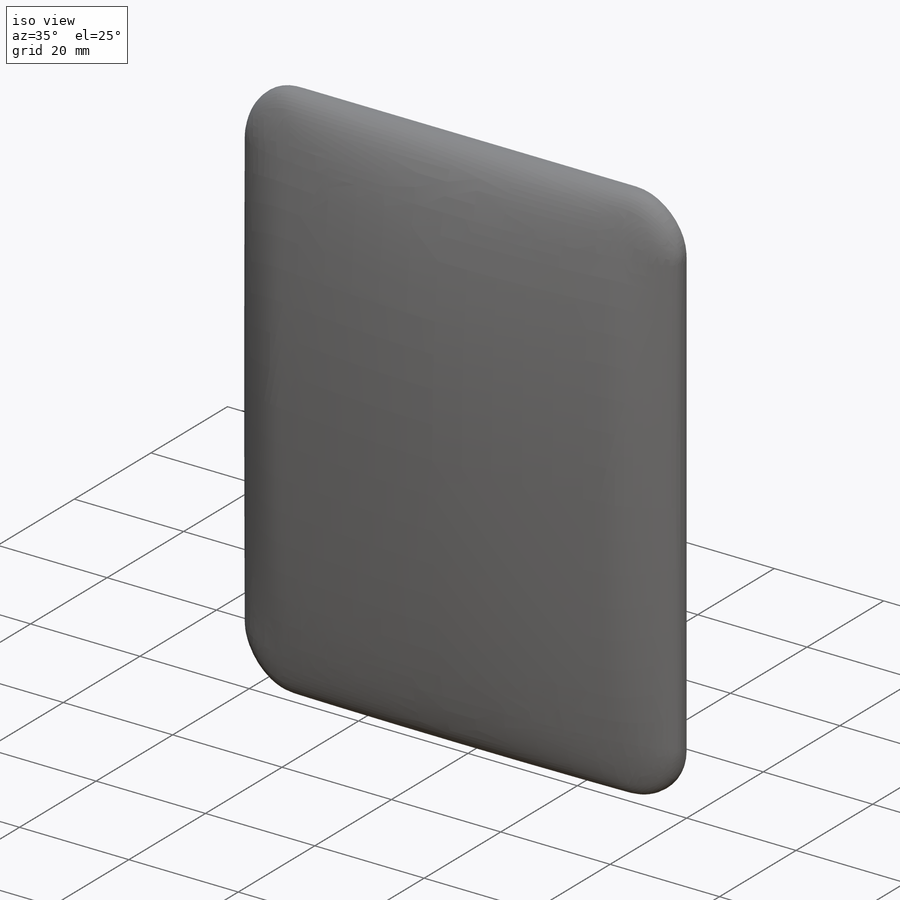
[diagram: iso view]
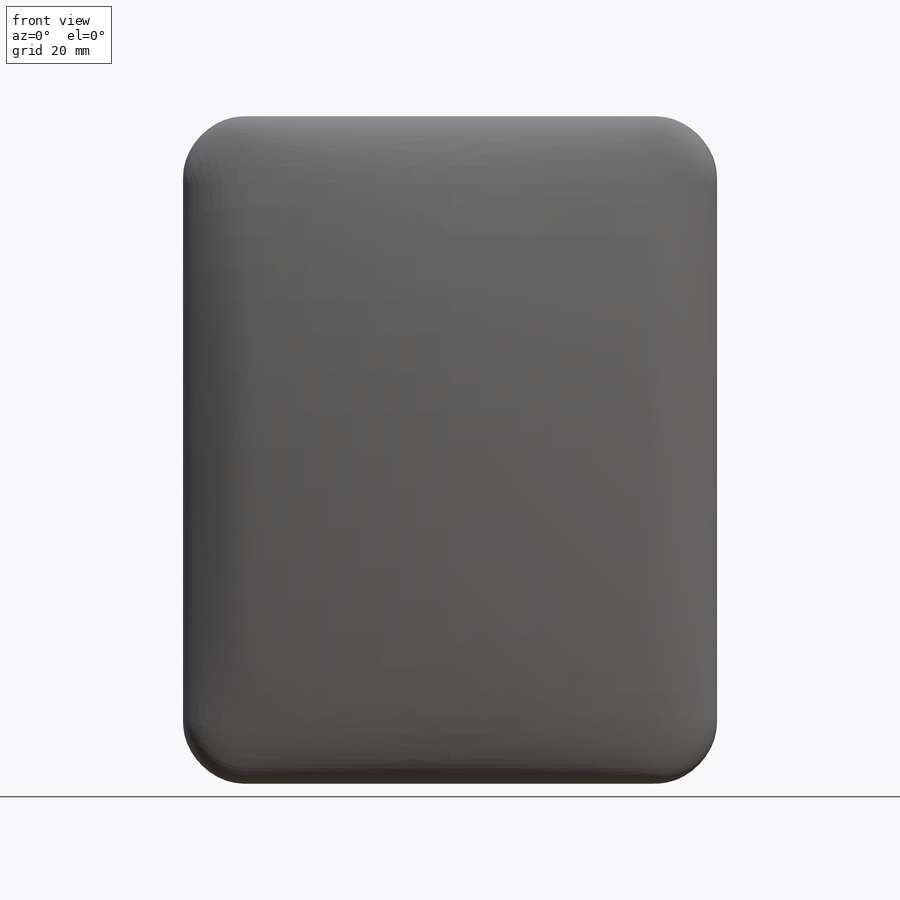
[diagram: front view]
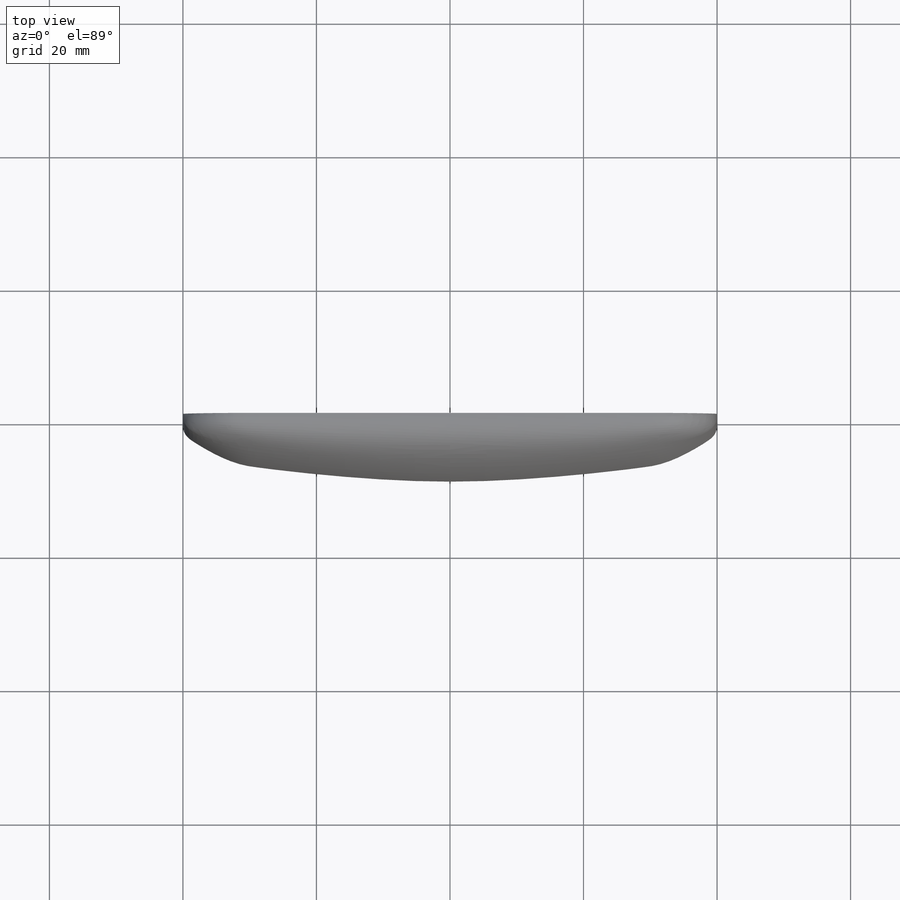
[diagram: top view]
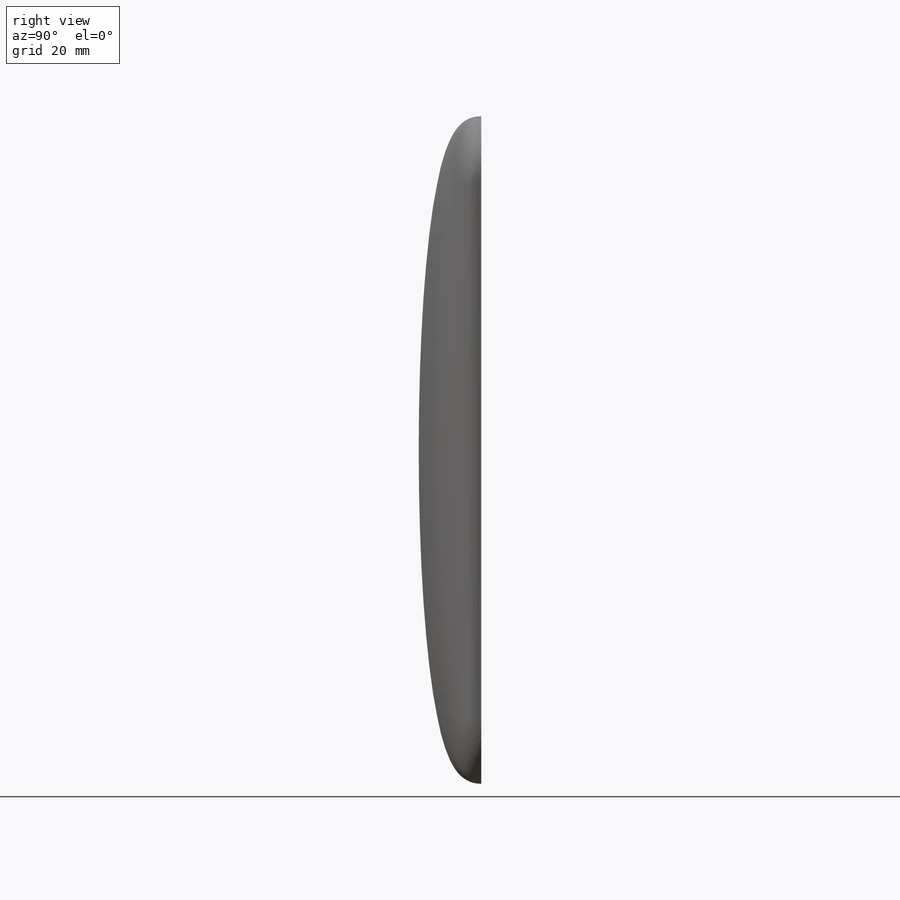
[diagram: right view]
SOLIDWORKS PART (.sldprt)
format: sldprt  version: not decoded by parser v0  size: 436,224 bytes
history: native  units: mm
features: sketch x11, plane x3, surface_op x2, material x1, mirror x1 (+8 scaffold rows collapsed)
feature tree (26):
  scaffold x8  (default folders/planes/origin — collapsed)
  material  "Material <nicht festgelegt>"
  plane  "Vorne"
  plane  "Oben"
  plane  "Rechts"
  sketch  "Skizze2"  dims[D3=10.0mm D1=80.0mm D2=100.0mm]
  sketch  "Skizze3"
  surface_op  "Oberfläche-Linear austragen1"
  sketch  "Skizze4"  dims[D1=30.0mm D2=30.0mm]
  sketch  "Skizze6"  dims[D2=30.0mm D3=30.0mm D1=0.0mm]
  sketch  "Skizze7"  dims[D1=0.0mm]
  sketch  "Skizze9"  dims[D1=3.0mm D2=3.0mm]
  sketch  "Skizze8"  dims[D1=0.0mm]
  sketch  "Skizze10"
  sketch  "Skizze8<19>"
  sketch  "Skizze10<6>"
  sketch  "Skizze11"
  surface_op  "Oberfläche-Linear austragen2"
  mirror  "Spiegeln1"
decode coverage: 6 of 14 modeling features carry decoded parameters
note: suppression state not decoded; provenance and decode notes live in map.json
